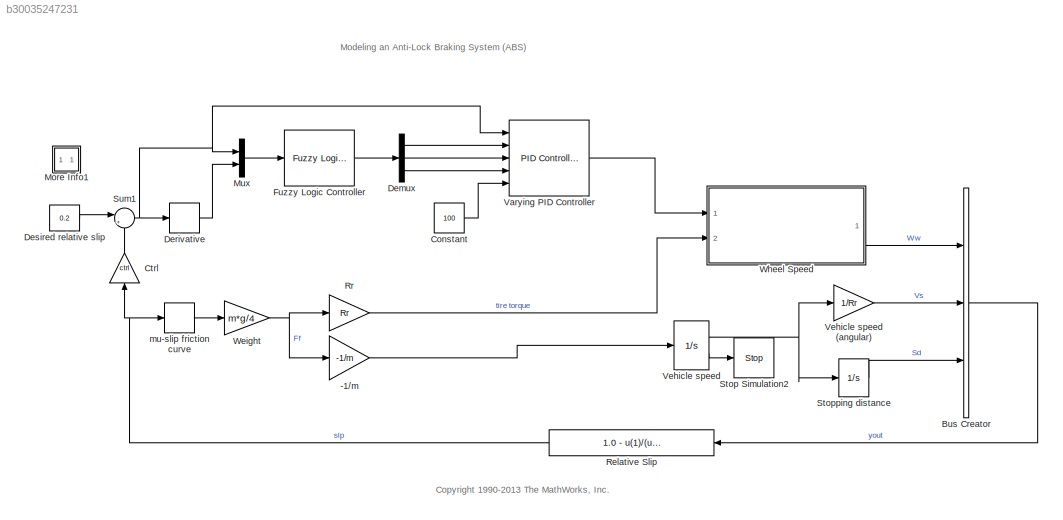
MODEL slx_b30035247231
KIND model
CONFIG AbsTol = 1e-6
CONFIG EnableMultiTasking = off
CONFIG FixedStep = auto
CONFIG MaxStep = .01
CONFIG MinStep = auto
CONFIG PreLoadFcn = % Load initialization data\n\nsldemo_absdata;
CONFIG RelTol = 1e-3
CONFIG SampleTimeConstraint = Unconstrained
CONFIG SolverName = ode45
CONFIG StartTime = 0.0
CONFIG StopFcn = if exist ('sldemo_absbrake_output')\n  sldemo_absbrakeplots;\nend
CONFIG StopTime = 100
BLOCK [Gain] -1//m
  Gain = -1/m
  OutDataTypeStr = Inherit: Same as input
  ParamDataTypeStr = Inherit: Same as input
  SaturateOnIntegerOverflow = on
BLOCK [BusCreator] Bus Creator
  DisplayOption = bar
  InheritFromInputs = on
  Inputs = 3
  Ports = [3, 1]
BLOCK [Constant] Constant
  Value = 100
BLOCK [Gain] Ctrl
  Gain = ctrl
  NameLocation = left
  OutDataTypeStr = Inherit: Same as input
  ParamDataTypeStr = Inherit: Same as input
  SaturateOnIntegerOverflow = on
BLOCK [Demux] Demux
  Outputs = 3
  Ports = [1, 3]
BLOCK [Derivative] Derivative
BLOCK [Constant] Desired relative slip
  Value = 0.2
BLOCK [Reference] Fuzzy Logic Controller  REF=fuzblock/Fuzzy Logic   (lib defined in mdl_858b3b3e7478)
Controller
  Ports = [1, 1]
  SourceBlock = fuzblock/Fuzzy Logic \nController
  SourceProductBaseCode = FL
  SourceType = Fuzzy Inference System
BLOCK [SubSystem] More Info1
  OpenFcn = showExample('simulink_automotive/ModelingAnAntiLockBrakingSystemExample')
  Ports = []
  RequestExecContextInheritance = off
BLOCK [Mux] Mux
  DisplayOption = bar
  Inputs = 2
  Ports = [2, 1]
BLOCK [Fcn] Relative Slip
  Expr = 1.0 - u(1)/(u(2) + (u(2)==0)*eps)
BLOCK [Gain] Rr
  Gain = Rr
  OutDataTypeStr = Inherit: Same as input
  ParamDataTypeStr = Inherit: Same as input
  SaturateOnIntegerOverflow = on
BLOCK [Stop] Stop Simulation2
BLOCK [Integrator] Stopping distance
  LowerSaturationLimit = 0
  Ports = [1, 1]
  UpperSaturationLimit = 1000
BLOCK [Sum] Sum1
  InputSameDT = on
  Inputs = |+-
  OutDataTypeStr = Inherit: Same as first input
  Ports = [2, 1]
  SaturateOnIntegerOverflow = on
BLOCK [Reference] Varying PID Controller  REF=pid_lib/PID Controller
  Ports = [5, 1]
  SourceBlock = pid_lib/PID Controller
  SourceProductBaseCode = SL
  SourceType = PID 1dof
BLOCK [Integrator] Vehicle speed
  InitialCondition = v0
  LimitOutput = on
  LowerSaturationLimit = 0
  Ports = [1, 2]
  ShowSaturationPort = on
  UpperSaturationLimit = 1000
BLOCK [Gain] Vehicle speed (angular)
  Gain = 1/Rr
  OutDataTypeStr = Inherit: Same as input
  ParamDataTypeStr = Inherit: Same as input
  SaturateOnIntegerOverflow = on
BLOCK [Gain] Weight
  Gain = m*g/4
  OutDataTypeStr = Inherit: Same as input
  ParamDataTypeStr = Inherit: Same as input
  SaturateOnIntegerOverflow = on
BLOCK [ModelReference] Wheel Speed
  ModelNameDialog = sldemo_wheelspeed_absbrake
  ModelReferenceVersion = 2.0
  Ports = [2, 1]
BLOCK [Lookup_n-D] mu-slip friction curve
  BreakpointsForDimension1 = slip
  InputPortMap = u0
  NumberOfTableDimensions = 1
  Ports = [1, 1]
  SaturateOnIntegerOverflow = on
  Table = mu
ANNOTATION (root): <copyright redacted>
ANNOTATION (root): Modeling an Anti-Lock Braking System (ABS)
LINE -1//m:1 -> Vehicle speed:1
LINE Bus Creator:1 -> Relative Slip:1
LINE Constant:1 -> Varying PID Controller:5
LINE Ctrl:1 -> Sum1:2
LINE Demux:1 -> Varying PID Controller:2
LINE Demux:2 -> Varying PID Controller:3
LINE Demux:3 -> Varying PID Controller:4
LINE Derivative:1 -> Mux:2
LINE Desired relative slip:1 -> Sum1:1
LINE Fuzzy Logic Controller:1 -> Demux:1
LINE Mux:1 -> Fuzzy Logic Controller:1
NET Relative Slip:1 -> Ctrl:1, mu-slip friction curve:1
LINE Rr:1 -> Wheel Speed:2
LINE Stopping distance:1 -> Bus Creator:3
NET Sum1:1 -> Derivative:1, Mux:1, Varying PID Controller:1
LINE Varying PID Controller:1 -> Wheel Speed:1
LINE Vehicle speed (angular):1 -> Bus Creator:2
NET Vehicle speed:1 -> Stopping distance:1, Vehicle speed (angular):1
LINE Vehicle speed:2 -> Stop Simulation2:1
NET Weight:1 -> -1//m:1, Rr:1
LINE Wheel Speed:1 -> Bus Creator:1
LINE mu-slip friction curve:1 -> Weight:1
note: NET lines group one-source signal fan-out (src -> all destinations, sorted); 1:1 wires keep LINE
